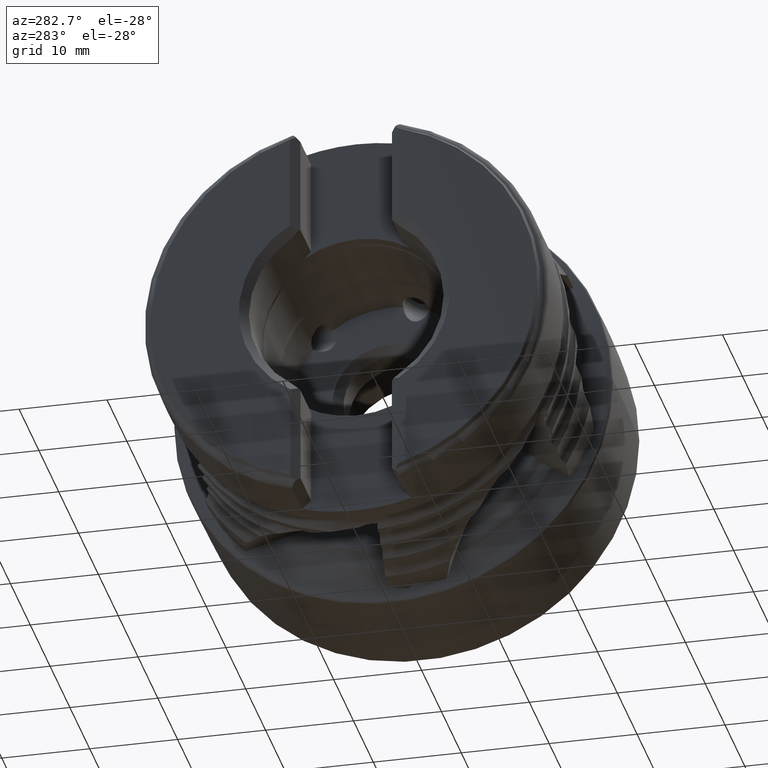
[diagram: clean part render]
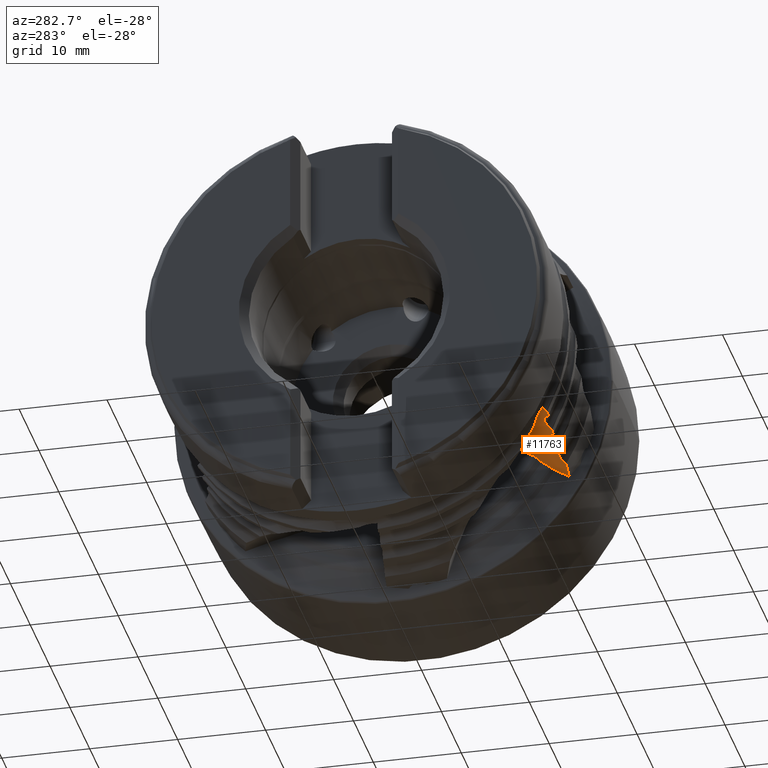
[diagram: same view with one face highlighted and labeled with its STEP entity id]
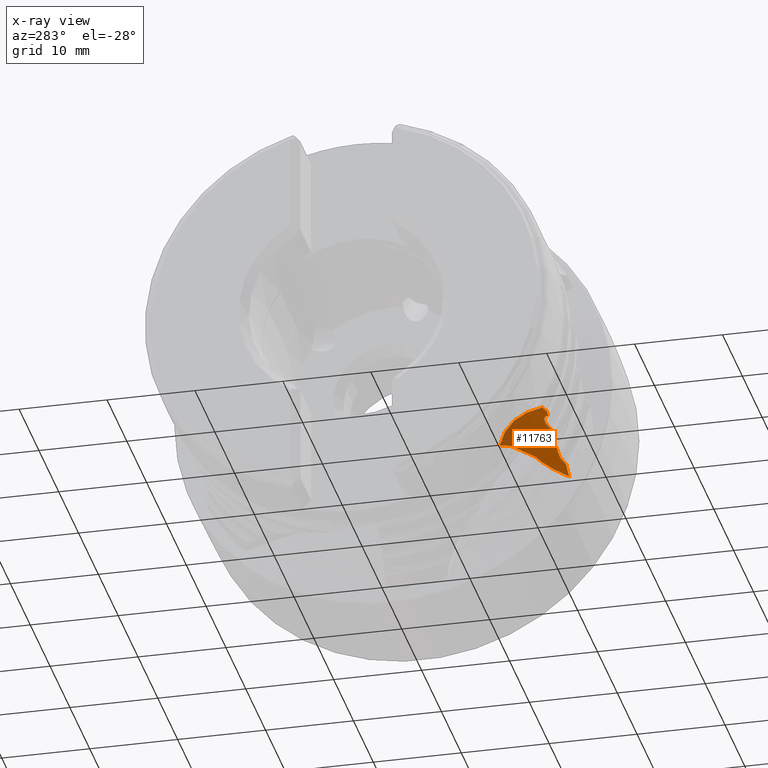
[diagram: x-ray of the same camera — body ghosted, the highlighted face saturated]
A machine part, auxiliary view. The second image highlights one B-rep face of the part: STEP entity #11763.
The next image is the same camera in x-ray: the body ghosted, the highlighted face saturated — about 25% of this face is hidden behind the body in this view.
In plain terms, the highlighted planar face has unit normal (0.1392, -0.4951, 0.8576).
Its self-contained STEP definition (entity closure, byte-faithful):
#49 = ORIENTED_EDGE ( 'NONE', *, *, #8799, .T. ) ;
#98 = VERTEX_POINT ( 'NONE', #15923 ) ;
#104 = B_SPLINE_CURVE_WITH_KNOTS ( 'NONE', 3,
 ( #13632, #6470, #2226, #12365, #10652, #12183, #855, #8070 ),
 .UNSPECIFIED., .F., .F.,
 ( 4, 2, 2, 4 ),
 ( 0.001473970468681208654, 0.001840347088348182709, 0.002206723708015156764, 0.002939476947349104873 ),
 .UNSPECIFIED. ) ;
#108 = B_SPLINE_CURVE_WITH_KNOTS ( 'NONE', 3,
 ( #9615, #18164, #9679, #18225 ),
 .UNSPECIFIED., .F., .F.,
 ( 4, 4 ),
 ( 1.991136668463215966E-07, 0.0001967258527080117557 ),
 .UNSPECIFIED. ) ;
#223 = CARTESIAN_POINT ( 'NONE',  ( -27.80607010177602234, -20.44402440242338415, -10.34363708619134847 ) ) ;
#495 = EDGE_CURVE ( 'NONE', #13180, #15628, #104, .T. ) ;
#526 = CARTESIAN_POINT ( 'NONE',  ( -25.42740005878287235, -19.71716645237323107, -10.31000215865463332 ) ) ;
#699 = EDGE_CURVE ( 'NONE', #3788, #98, #14283, .T. ) ;
#717 = B_SPLINE_CURVE_WITH_KNOTS ( 'NONE', 3,
 ( #9094, #2052, #18296, #13714, #8221, #929, #9611, #18354, #9675, #5314 ),
 .UNSPECIFIED., .F., .F.,
 ( 4, 2, 2, 2, 4 ),
 ( 3.542237846181087606E-07, 0.0003683011002327156512, 0.0007362479766808132514, 0.001104194853128910797, 0.001472141729577008343 ),
 .UNSPECIFIED. ) ;
#855 = CARTESIAN_POINT ( 'NONE',  ( -26.65554080571128992, -20.19235820607443799, -10.38504839963239235 ) ) ;
#902 = CARTESIAN_POINT ( 'NONE',  ( -23.45978721798716293, -20.23721145985156511, -10.92955956702979670 ) ) ;
#929 = CARTESIAN_POINT ( 'NONE',  ( -21.45426217832567772, -19.55433496018827810, -10.86076240879320309 ) ) ;
#938 = ORIENTED_EDGE ( 'NONE', *, *, #8509, .T. ) ;
#995 = CARTESIAN_POINT ( 'NONE',  ( -15.80531335188684672, -18.34075862404627344, -11.07682976013199116 ) ) ;
#1022 = EDGE_CURVE ( 'NONE', #16911, #5646, #10291, .T. ) ;
#1047 = CARTESIAN_POINT ( 'NONE',  ( -16.92008064741922979, -13.97159240121396806, -8.373383155219290330 ) ) ;
#1048 = CARTESIAN_POINT ( 'NONE',  ( -15.90896133935691026, -18.18367002668681565, -10.96931435360106377 ) ) ;
#1096 = B_SPLINE_CURVE_WITH_KNOTS ( 'NONE', 3,
 ( #223, #13139, #13079, #1735, #7812, #6118 ),
 .UNSPECIFIED., .F., .F.,
 ( 4, 2, 4 ),
 ( 3.555705899044723354E-07, 0.0002971868911706906924, 0.0005940182117514768980 ),
 .UNSPECIFIED. ) ;
#1185 = CARTESIAN_POINT ( 'NONE',  ( -24.20592235981755991, -20.28685633934350108, -10.83713731759242727 ) ) ;
#1259 = CARTESIAN_POINT ( 'NONE',  ( -16.65317086511449673, -16.91234783518121887, -10.11454390407220316 ) ) ;
#1298 = CARTESIAN_POINT ( 'NONE',  ( -16.65317086511449673, -16.91234783518121887, -10.11454390407220316 ) ) ;
#1302 = EDGE_CURVE ( 'NONE', #7879, #6756, #14281, .T. ) ;
#1369 = ORIENTED_EDGE ( 'NONE', *, *, #495, .T. ) ;
#1489 = CARTESIAN_POINT ( 'NONE',  ( -16.81930266459457357, -16.64648752649400265, -9.934089086661273882 ) ) ;
#1540 = ORIENTED_EDGE ( 'NONE', *, *, #1640, .T. ) ;
#1640 = EDGE_CURVE ( 'NONE', #11483, #2397, #13326, .T. ) ;
#1735 = CARTESIAN_POINT ( 'NONE',  ( -28.06379685068427676, -20.20341792516847335, -10.16289831067719795 ) ) ;
#1772 = CARTESIAN_POINT ( 'NONE',  ( -15.87441239859545306, -18.23603310707536096, -11.00515288331548369 ) ) ;
#1905 = ORIENTED_EDGE ( 'NONE', *, *, #14055, .T. ) ;
#2052 = CARTESIAN_POINT ( 'NONE',  ( -20.87533028832255866, -19.89661750561437970, -11.15232988783769663 ) ) ;
#2164 = CARTESIAN_POINT ( 'NONE',  ( -22.29389899649383722, -19.52214022688644945, -10.70591634384277313 ) ) ;
#2169 = EDGE_CURVE ( 'NONE', #18033, #11483, #717, .T. ) ;
#2226 = CARTESIAN_POINT ( 'NONE',  ( -25.79377743606461948, -19.75398533739151574, -10.27180288671002373 ) ) ;
#2296 = CARTESIAN_POINT ( 'NONE',  ( -20.64021278201282428, -20.04587222064566632, -11.27665761267700439 ) ) ;
#2313 = B_SPLINE_CURVE_WITH_KNOTS ( 'NONE', 3,
 ( #995, #8227, #12450, #2380 ),
 .UNSPECIFIED., .F., .F.,
 ( 4, 4 ),
 ( 3.231220371458403611E-07, 4.685435063957670921E-05 ),
 .UNSPECIFIED. ) ;
#2380 = CARTESIAN_POINT ( 'NONE',  ( -15.77651220158243817, -18.37019025707450837, -11.09849604628975683 ) ) ;
#2397 = VERTEX_POINT ( 'NONE', #14111 ) ;
#2415 = CARTESIAN_POINT ( 'NONE',  ( -16.45361573362453811, -17.11266878871806085, -10.26258358161158846 ) ) ;
#2463 = EDGE_CURVE ( 'NONE', #6352, #18033, #12101, .T. ) ;
#2495 = ORIENTED_EDGE ( 'NONE', *, *, #2169, .T. ) ;
#2599 = CARTESIAN_POINT ( 'NONE',  ( -16.92008064741922979, -13.97159240121396806, -8.373383155219290330 ) ) ;
#2605 = ORIENTED_EDGE ( 'NONE', *, *, #1302, .T. ) ;
#2656 = CARTESIAN_POINT ( 'NONE',  ( -26.79392989822396487, -20.37932422315864400, -10.47053514129509999 ) ) ;
#2698 = CARTESIAN_POINT ( 'NONE',  ( -16.10663191695058671, -17.69859771246182945, -10.65717923157998293 ) ) ;
#2716 = EDGE_CURVE ( 'NONE', #5646, #16212, #13942, .T. ) ;
#2719 = VERTEX_POINT ( 'NONE', #12312 ) ;
#2783 = CARTESIAN_POINT ( 'NONE',  ( -16.17100455448463237, -17.49506955121101726, -10.52922563535497424 ) ) ;
#2875 = CARTESIAN_POINT ( 'NONE',  ( -19.28000753342687190, -19.95148565411459884, -11.44290111674532362 ) ) ;
#3039 = DIRECTION ( 'NONE',  ( 0.0000000000000000000, -0.8660254037844397068, -0.4999999999999980571 ) ) ;
#3121 = VERTEX_POINT ( 'NONE', #17907 ) ;
#3159 = EDGE_CURVE ( 'NONE', #98, #4606, #12616, .T. ) ;
#3371 = CARTESIAN_POINT ( 'NONE',  ( -15.58189409781170198, -20.30191614983665360, -12.24536163798367561 ) ) ;
#3381 = ORIENTED_EDGE ( 'NONE', *, *, #1022, .T. ) ;
#3538 = ORIENTED_EDGE ( 'NONE', *, *, #2716, .T. ) ;
#3612 = B_SPLINE_CURVE_WITH_KNOTS ( 'NONE', 3,
 ( #5419, #11146, #18386, #2599 ),
 .UNSPECIFIED., .F., .F.,
 ( 4, 4 ),
 ( 6.188374858479060801E-05, 0.001882202591407743444 ),
 .UNSPECIFIED. ) ;
#3647 = EDGE_CURVE ( 'NONE', #10374, #14854, #1096, .T. ) ;
#3687 = B_SPLINE_CURVE_WITH_KNOTS ( 'NONE', 3,
 ( #9301, #14981, #13788, #7715 ),
 .UNSPECIFIED., .F., .F.,
 ( 4, 4 ),
 ( 1.361709741225221503E-06, 0.0001426686381011901697 ),
 .UNSPECIFIED. ) ;
#3788 = VERTEX_POINT ( 'NONE', #2415 ) ;
#3791 = CARTESIAN_POINT ( 'NONE',  ( -23.39427606288711559, -20.23283454710534102, -10.93766387438186172 ) ) ;
#3999 = CARTESIAN_POINT ( 'NONE',  ( -16.84005700675518113, -16.52692405207857718, -9.861691014382241605 ) ) ;
#4019 = CARTESIAN_POINT ( 'NONE',  ( -16.06437271833396352, -17.80870942135295820, -10.72761018802359168 ) ) ;
#4096 = CARTESIAN_POINT ( 'NONE',  ( -26.89433026929044601, -20.46228588147226546, -10.50213984605675321 ) ) ;
#4140 = CARTESIAN_POINT ( 'NONE',  ( -24.26919740393636360, -20.26200402498603736, -10.81252038995744513 ) ) ;
#4219 = CARTESIAN_POINT ( 'NONE',  ( -17.99999999999999645, -20.47536218936462404, -11.95308429713174370 ) ) ;
#4271 = CARTESIAN_POINT ( 'NONE',  ( -26.83084598091825512, -20.42919847858141225, -10.49333921903841649 ) ) ;
#4314 = CARTESIAN_POINT ( 'NONE',  ( -18.98464303024830002, -19.98602607886232718, -11.51077555314773626 ) ) ;
#4328 = ORIENTED_EDGE ( 'NONE', *, *, #17414, .T. ) ;
#4372 = B_SPLINE_CURVE_WITH_KNOTS ( 'NONE', 3,
 ( #16963, #1185, #4140, #15503 ),
 .UNSPECIFIED., .F., .F.,
 ( 4, 4 ),
 ( 1.991176426054523960E-07, 0.0001964750637344810362 ),
 .UNSPECIFIED. ) ;
#4400 = CARTESIAN_POINT ( 'NONE',  ( -16.25518053409054176, -17.33073644378969647, -10.42068757661488476 ) ) ;
#4431 = CARTESIAN_POINT ( 'NONE',  ( -27.64021278201282783, -20.51000061874422187, -10.40864422579190673 ) ) ;
#4465 = VERTEX_POINT ( 'NONE', #3371 ) ;
#4476 = PLANE ( 'NONE',  #7362 ) ;
#4592 =( BOUNDED_CURVE ( )  B_SPLINE_CURVE ( 3, ( #9895, #15896, #12972, #4219 ),
 .UNSPECIFIED., .F., .F. ) 
 B_SPLINE_CURVE_WITH_KNOTS ( ( 4, 4 ),
 ( 1.551653220718020032, 1.565988279242652270 ),
 .UNSPECIFIED. ) 
 CURVE ( )  GEOMETRIC_REPRESENTATION_ITEM ( )  RATIONAL_B_SPLINE_CURVE ( ( 1.000000000000000000, 0.9999828755814031966, 0.9999828755814031966, 1.000000000000000000 ) ) 
 REPRESENTATION_ITEM ( '' )  );
#4606 = VERTEX_POINT ( 'NONE', #13449 ) ;
#4679 = CARTESIAN_POINT ( 'NONE',  ( -24.30607010177602589, -20.21702910249051399, -10.78057030990325238 ) ) ;
#4737 = CARTESIAN_POINT ( 'NONE',  ( -16.76602882753732260, -16.76278910441870451, -10.00988124957398284 ) ) ;
#4793 = CARTESIAN_POINT ( 'NONE',  ( -24.37529603350135687, -20.13259180615907340, -10.72058625150676114 ) ) ;
#4799 = CARTESIAN_POINT ( 'NONE',  ( -28.22335738781866610, -20.11182675221392202, -10.08412422708381584 ) ) ;
#5042 = CARTESIAN_POINT ( 'NONE',  ( -22.17208597093858202, -19.50090574401725974, -10.71342474120173094 ) ) ;
#5087 = CARTESIAN_POINT ( 'NONE',  ( -23.45978721798716293, -20.23721145985156511, -10.92955956702979670 ) ) ;
#5249 = CARTESIAN_POINT ( 'NONE',  ( -15.95622291607161714, -18.08051176115880665, -10.90208617074358699 ) ) ;
#5314 = CARTESIAN_POINT ( 'NONE',  ( -22.04999999999999361, -19.49263077170403591, -10.72845960974905744 ) ) ;
#5395 = CARTESIAN_POINT ( 'NONE',  ( -16.38747281740767647, -17.18535956471487580, -10.31528546362766718 ) ) ;
#5419 = CARTESIAN_POINT ( 'NONE',  ( -16.08952334799043982, -12.51409244729241976, -7.666680143787513835 ) ) ;
#5438 = VERTEX_POINT ( 'NONE', #1259 ) ;
#5468 = CARTESIAN_POINT ( 'NONE',  ( -27.64021278201282783, -20.51000061874422187, -10.40864422579190673 ) ) ;
#5532 = CARTESIAN_POINT ( 'NONE',  ( -16.17100455448463237, -17.49506955121101726, -10.52922563535497424 ) ) ;
#5541 = CARTESIAN_POINT ( 'NONE',  ( -26.95978721798716293, -20.46648838616701482, -10.49394364092406740 ) ) ;
#5646 = VERTEX_POINT ( 'NONE', #15231 ) ;
#5716 = CARTESIAN_POINT ( 'NONE',  ( -16.80154480469085243, -16.68525475427873772, -9.959353147334498502 ) ) ;
#5763 = CARTESIAN_POINT ( 'NONE',  ( -16.10663191695058671, -17.69859771246182945, -10.65717923157998293 ) ) ;
#5859 = ORIENTED_EDGE ( 'NONE', *, *, #10487, .T. ) ;
#5885 = B_SPLINE_CURVE_WITH_KNOTS ( 'NONE', 3,
 ( #2656, #4271, #4096, #5541 ),
 .UNSPECIFIED., .F., .F.,
 ( 4, 4 ),
 ( 3.535517868655004952E-07, 0.0001959003341605023200 ),
 .UNSPECIFIED. ) ;
#6071 = ORIENTED_EDGE ( 'NONE', *, *, #12036, .T. ) ;
#6118 = CARTESIAN_POINT ( 'NONE',  ( -28.22335738781866610, -20.11182675221392202, -10.08412422708381584 ) ) ;
#6173 = CARTESIAN_POINT ( 'NONE',  ( -25.30676505422163558, -19.72213374925216556, -10.33244698832116804 ) ) ;
#6264 = ORIENTED_EDGE ( 'NONE', *, *, #17170, .F. ) ;
#6350 = EDGE_CURVE ( 'NONE', #8717, #10374, #108, .T. ) ;
#6352 = VERTEX_POINT ( 'NONE', #6622 ) ;
#6443 = ORIENTED_EDGE ( 'NONE', *, *, #8849, .T. ) ;
#6470 = CARTESIAN_POINT ( 'NONE',  ( -25.67192528672351060, -19.73308136411551317, -10.27950845298037486 ) ) ;
#6622 = CARTESIAN_POINT ( 'NONE',  ( -20.64021278201282428, -20.04587222064566632, -11.27665761267700439 ) ) ;
#6700 = CARTESIAN_POINT ( 'NONE',  ( -15.80531335188684672, -18.34075862404627344, -11.07682976013199116 ) ) ;
#6756 = VERTEX_POINT ( 'NONE', #16784 ) ;
#6767 = ORIENTED_EDGE ( 'NONE', *, *, #7316, .F. ) ;
#6795 = CARTESIAN_POINT ( 'NONE',  ( -14.40231342163426120, -32.01011025215984773, -19.19651604717783755 ) ) ;
#6819 = VERTEX_POINT ( 'NONE', #6700 ) ;
#6866 = CARTESIAN_POINT ( 'NONE',  ( -8.286499728246020879, -34.42106289550581266, -21.58097021446005925 ) ) ;
#6894 = CARTESIAN_POINT ( 'NONE',  ( -16.22712207887749614, -17.38551423803439633, -10.45686694930017957 ) ) ;
#6952 = EDGE_CURVE ( 'NONE', #15628, #11314, #5885, .T. ) ;
#6996 = CARTESIAN_POINT ( 'NONE',  ( -24.30607010177602589, -20.21702910249051399, -10.78057030990325238 ) ) ;
#7013 = ORIENTED_EDGE ( 'NONE', *, *, #10932, .T. ) ;
#7059 = CARTESIAN_POINT ( 'NONE',  ( -18.09991888714917607, -20.38510761019677986, -11.88476069700657689 ) ) ;
#7109 = CARTESIAN_POINT ( 'NONE',  ( -17.99999999999999645, -20.47536218936462404, -11.95308429713174370 ) ) ;
#7118 = CARTESIAN_POINT ( 'NONE',  ( -16.65317086511449673, -16.91234783518121887, -10.11454390407220316 ) ) ;
#7121 = CARTESIAN_POINT ( 'NONE',  ( -26.95978721798716293, -20.46648838616701482, -10.49394364092406740 ) ) ;
#7243 = CARTESIAN_POINT ( 'NONE',  ( -20.80607010177602589, -19.98087150996333605, -11.21221368151943665 ) ) ;
#7261 = VERTEX_POINT ( 'NONE', #6996 ) ;
#7267 = CARTESIAN_POINT ( 'NONE',  ( -27.18662009900539545, -20.48105164150778279, -10.46554071572305844 ) ) ;
#7316 = EDGE_CURVE ( 'NONE', #2719, #14854, #11347, .T. ) ;
#7362 = AXIS2_PLACEMENT_3D ( 'NONE', #14503, #14384, #3039 ) ;
#7369 = EDGE_CURVE ( 'NONE', #17396, #14213, #14669, .T. ) ;
#7380 = ORIENTED_EDGE ( 'NONE', *, *, #16885, .T. ) ;
#7391 = CARTESIAN_POINT ( 'NONE',  ( -17.99999999999999645, -20.47536218936462404, -11.95308429713174370 ) ) ;
#7715 = CARTESIAN_POINT ( 'NONE',  ( -16.81930266459457357, -16.64648752649400265, -9.934089086661273882 ) ) ;
#7748 = CARTESIAN_POINT ( 'NONE',  ( -22.04999999999999361, -19.49263077170403591, -10.72845960974905744 ) ) ;
#7810 = CARTESIAN_POINT ( 'NONE',  ( -22.52926181101010883, -19.58866885150012749, -10.70613137898608258 ) ) ;
#7812 = CARTESIAN_POINT ( 'NONE',  ( -28.14115308839453888, -20.15373802702061212, -10.12166203846726731 ) ) ;
#7876 = CARTESIAN_POINT ( 'NONE',  ( -22.96783857921536054, -19.80479891424579364, -10.75974076051844364 ) ) ;
#7879 = VERTEX_POINT ( 'NONE', #18394 ) ;
#7915 = CARTESIAN_POINT ( 'NONE',  ( -25.54999999999999361, -19.72514586317068819, -10.29471323916505732 ) ) ;
#7931 = B_SPLINE_CURVE_WITH_KNOTS ( 'NONE', 3,
 ( #4679, #4793, #13324, #14717, #13201, #17756, #11977, #6173, #526, #10290 ),
 .UNSPECIFIED., .F., .F.,
 ( 4, 2, 2, 2, 4 ),
 ( 3.548392554938725825E-07, 0.0003687587466119225774, 0.0007371626539683513420, 0.001105566561324779944, 0.001473970468681208654 ),
 .UNSPECIFIED. ) ;
#8070 = CARTESIAN_POINT ( 'NONE',  ( -26.79392989822396487, -20.37932422315864400, -10.47053514129509999 ) ) ;
#8217 = CARTESIAN_POINT ( 'NONE',  ( -16.92008064741922979, -13.97159240121396806, -8.373383155219290330 ) ) ;
#8221 = CARTESIAN_POINT ( 'NONE',  ( -21.23936599717225704, -19.63843237754818460, -10.94418998151552991 ) ) ;
#8227 = CARTESIAN_POINT ( 'NONE',  ( -15.79571301008562223, -18.35056920046950069, -11.08405186728318270 ) ) ;
#8282 = DIRECTION ( 'NONE',  ( 0.0000000000000000000, -0.8660254037844397068, -0.4999999999999982236 ) ) ;
#8357 = CARTESIAN_POINT ( 'NONE',  ( -16.14954705276420199, -17.56291228517007852, -10.57187683475459750 ) ) ;
#8459 = CARTESIAN_POINT ( 'NONE',  ( -19.57899999999999707, -19.97232522431376012, -11.40641158008249789 ) ) ;
#8509 = EDGE_CURVE ( 'NONE', #16212, #6819, #12313, .T. ) ;
#8517 = CARTESIAN_POINT ( 'NONE',  ( -18.20978850299964691, -20.30654512174240978, -11.82157269870062422 ) ) ;
#8554 = EDGE_CURVE ( 'NONE', #16234, #3121, #3687, .T. ) ;
#8717 = VERTEX_POINT ( 'NONE', #5468 ) ;
#8772 = CARTESIAN_POINT ( 'NONE',  ( -27.80607010177602234, -20.44402440242338415, -10.34363708619134847 ) ) ;
#8799 = EDGE_CURVE ( 'NONE', #3121, #18197, #13521, .T. ) ;
#8849 = EDGE_CURVE ( 'NONE', #4606, #16911, #16695, .T. ) ;
#8865 =( BOUNDED_CURVE ( )  B_SPLINE_CURVE ( 3, ( #17454, #7267, #13001, #4431 ),
 .UNSPECIFIED., .F., .F. ) 
 B_SPLINE_CURVE_WITH_KNOTS ( ( 4, 4 ),
 ( 1.620609203419215882, 1.624772531903110329 ),
 .UNSPECIFIED. ) 
 CURVE ( )  GEOMETRIC_REPRESENTATION_ITEM ( )  RATIONAL_B_SPLINE_CURVE ( ( 1.000000000000000000, 0.9999985555585162444, 0.9999985555585162444, 1.000000000000000000 ) ) 
 REPRESENTATION_ITEM ( '' )  );
#9087 = CARTESIAN_POINT ( 'NONE',  ( -22.04999999999999361, -19.49263077170403591, -10.72845960974905744 ) ) ;
#9094 = CARTESIAN_POINT ( 'NONE',  ( -20.80607010177602589, -19.98087150996333605, -11.21221368151943665 ) ) ;
#9129 = VECTOR ( 'NONE', #14081, 1000.000000000000000 ) ;
#9235 = CARTESIAN_POINT ( 'NONE',  ( -15.80531335188684672, -18.34075862404627344, -11.07682976013199116 ) ) ;
#9301 = CARTESIAN_POINT ( 'NONE',  ( -16.84005700675518113, -16.52692405207857718, -9.861691014382241605 ) ) ;
#9407 = CARTESIAN_POINT ( 'NONE',  ( -20.28648490854186193, -20.02149683487957077, -11.31998834818208266 ) ) ;
#9553 = CARTESIAN_POINT ( 'NONE',  ( -16.25518053409054176, -17.33073644378969647, -10.42068757661488476 ) ) ;
#9604 = CARTESIAN_POINT ( 'NONE',  ( -15.93259218173768943, -18.13209091605836676, -10.93570026618523450 ) ) ;
#9611 = CARTESIAN_POINT ( 'NONE',  ( -21.56975134424657270, -19.52384312272857869, -10.82441605870934964 ) ) ;
#9615 = CARTESIAN_POINT ( 'NONE',  ( -27.64021278201282783, -20.51000061874422187, -10.40864422579190673 ) ) ;
#9654 = CARTESIAN_POINT ( 'NONE',  ( -19.57899999999999707, -19.97232522431376012, -11.40641158008249789 ) ) ;
#9675 = CARTESIAN_POINT ( 'NONE',  ( -21.92750242351538148, -19.48432790081677979, -10.74354516745608557 ) ) ;
#9679 = CARTESIAN_POINT ( 'NONE',  ( -27.76922638726297876, -20.48910585731049849, -10.37564396926155297 ) ) ;
#9801 = CARTESIAN_POINT ( 'NONE',  ( -16.89340642122146363, -14.82336964836786919, -8.869485740333253432 ) ) ;
#9822 = CARTESIAN_POINT ( 'NONE',  ( -15.77651220158243817, -18.37019025707450837, -11.09849604628975683 ) ) ;
#9891 = ORIENTED_EDGE ( 'NONE', *, *, #17091, .T. ) ;
#9895 = CARTESIAN_POINT ( 'NONE',  ( -15.58189409781170198, -20.30191614983665360, -12.24536163798367561 ) ) ;
#10231 = VERTEX_POINT ( 'NONE', #9822 ) ;
#10290 = CARTESIAN_POINT ( 'NONE',  ( -25.54999999999999361, -19.72514586317068819, -10.29471323916505732 ) ) ;
#10291 = B_SPLINE_CURVE_WITH_KNOTS ( 'NONE', 3,
 ( #18239, #4019, #11062, #10873 ),
 .UNSPECIFIED., .F., .F.,
 ( 4, 4 ),
 ( 6.501380750674848905E-07, 0.0004127648446239235163 ),
 .UNSPECIFIED. ) ;
#10374 = VERTEX_POINT ( 'NONE', #8772 ) ;
#10487 = EDGE_CURVE ( 'NONE', #2397, #7879, #16341, .T. ) ;
#10650 = CARTESIAN_POINT ( 'NONE',  ( -22.64534124007339599, -19.63492948902230140, -10.71400230156984179 ) ) ;
#10652 = CARTESIAN_POINT ( 'NONE',  ( -26.14513370125381542, -19.86582359993678182, -10.27935373736227120 ) ) ;
#10699 = CARTESIAN_POINT ( 'NONE',  ( -23.29392989822396487, -20.14967720525062589, -10.90593739492023673 ) ) ;
#10873 = CARTESIAN_POINT ( 'NONE',  ( -15.97985353949619913, -18.02893256081585349, -10.86847206706383773 ) ) ;
#10932 = EDGE_CURVE ( 'NONE', #4465, #17396, #4592, .T. ) ;
#11062 = CARTESIAN_POINT ( 'NONE',  ( -16.02211325433657763, -17.91882103574589280, -10.79804113297530854 ) ) ;
#11146 = CARTESIAN_POINT ( 'NONE',  ( -16.36627129614890208, -12.99996584891189677, -7.902287912660955982 ) ) ;
#11258 = CARTESIAN_POINT ( 'NONE',  ( -16.72841016168543504, -16.81264241965478945, -10.04476892860190240 ) ) ;
#11259 = CARTESIAN_POINT ( 'NONE',  ( -16.78378685839676265, -16.72402194667123609, -9.984617201593660951 ) ) ;
#11293 = FACE_OUTER_BOUND ( 'NONE', #14093, .T. ) ;
#11314 = VERTEX_POINT ( 'NONE', #7121 ) ;
#11347 = CIRCLE ( 'NONE', #17830, 27.10000000000001208 ) ;
#11373 = ORIENTED_EDGE ( 'NONE', *, *, #3159, .T. ) ;
#11483 = VERTEX_POINT ( 'NONE', #9087 ) ;
#11669 = EDGE_CURVE ( 'NONE', #2719, #14584, #3612, .T. ) ;
#11763 = ADVANCED_FACE ( 'NONE', ( #11293 ), #4476, .F. ) ;
#11977 = CARTESIAN_POINT ( 'NONE',  ( -25.06939533480372972, -19.75776683588864913, -10.39154073036922732 ) ) ;
#12036 = EDGE_CURVE ( 'NONE', #6756, #7261, #4372, .T. ) ;
#12043 = CARTESIAN_POINT ( 'NONE',  ( -23.15554013620016960, -19.96249418110691920, -10.82032547282329737 ) ) ;
#12073 = EDGE_CURVE ( 'NONE', #18197, #5438, #17148, .T. ) ;
#12101 = B_SPLINE_CURVE_WITH_KNOTS ( 'NONE', 3,
 ( #15763, #17224, #13155, #7243 ),
 .UNSPECIFIED., .F., .F.,
 ( 4, 4 ),
 ( 1.991229227995059656E-07, 0.0001962502032609331226 ),
 .UNSPECIFIED. ) ;
#12183 = CARTESIAN_POINT ( 'NONE',  ( -26.46779235424106957, -20.03498951577669018, -10.32465984655227409 ) ) ;
#12270 = CARTESIAN_POINT ( 'NONE',  ( -16.19906341704087893, -17.44029193962635560, -10.49304630202379762 ) ) ;
#12312 = CARTESIAN_POINT ( 'NONE',  ( -16.08952334799043982, -12.51409244729241976, -7.666680143787513835 ) ) ;
#12313 = B_SPLINE_CURVE_WITH_KNOTS ( 'NONE', 3,
 ( #16085, #1772, #16375, #9235 ),
 .UNSPECIFIED., .F., .F.,
 ( 4, 4 ),
 ( 4.182416342727286905E-07, 0.0002171653185891117555 ),
 .UNSPECIFIED. ) ;
#12365 = CARTESIAN_POINT ( 'NONE',  ( -26.02905282516293184, -19.81986949522586983, -10.27166002640697329 ) ) ;
#12450 = CARTESIAN_POINT ( 'NONE',  ( -15.78611262658059466, -18.36037974475834034, -11.09127396264937992 ) ) ;
#12616 = B_SPLINE_CURVE_WITH_KNOTS ( 'NONE', 3,
 ( #4400, #6894, #12270, #2783 ),
 .UNSPECIFIED., .F., .F.,
 ( 4, 4 ),
 ( 5.088811320551343984E-07, 0.0002146851541700110083 ),
 .UNSPECIFIED. ) ;
#12664 = CARTESIAN_POINT ( 'NONE',  ( -16.84005700675518113, -16.52692405207857718, -9.861691014382241605 ) ) ;
#12667 = ORIENTED_EDGE ( 'NONE', *, *, #6350, .T. ) ;
#12691 = CARTESIAN_POINT ( 'NONE',  ( -20.80607010177602589, -19.98087150996333605, -11.21221368151943665 ) ) ;
#12704 = CARTESIAN_POINT ( 'NONE',  ( -16.52013645984338908, -17.04589697529172199, -10.21323770224797123 ) ) ;
#12758 = ORIENTED_EDGE ( 'NONE', *, *, #12073, .T. ) ;
#12765 = CARTESIAN_POINT ( 'NONE',  ( -16.45361573362453811, -17.11266878871806085, -10.26258358161158846 ) ) ;
#12820 = CARTESIAN_POINT ( 'NONE',  ( -16.86673182505941426, -15.67514686068273022, -9.365588365371644741 ) ) ;
#12883 = CARTESIAN_POINT ( 'NONE',  ( -18.44850433473401097, -20.17171762029347803, -11.70499058398217151 ) ) ;
#12972 = CARTESIAN_POINT ( 'NONE',  ( -17.19390241065202574, -20.41824564600106839, -12.05092363995760252 ) ) ;
#13001 = CARTESIAN_POINT ( 'NONE',  ( -27.41342894795939955, -20.49555573998384261, -10.43710753627560628 ) ) ;
#13056 = ORIENTED_EDGE ( 'NONE', *, *, #699, .T. ) ;
#13079 = CARTESIAN_POINT ( 'NONE',  ( -27.92454514438083990, -20.31429671220400479, -10.24951233403909079 ) ) ;
#13139 = CARTESIAN_POINT ( 'NONE',  ( -27.86173227338770886, -20.37591694606086890, -10.29528222724851361 ) ) ;
#13155 = CARTESIAN_POINT ( 'NONE',  ( -20.76917549784619155, -20.02575325624434299, -11.24411352123787111 ) ) ;
#13180 = VERTEX_POINT ( 'NONE', #7915 ) ;
#13201 = CARTESIAN_POINT ( 'NONE',  ( -24.73911413653104319, -19.87337305267209331, -10.51188489490301059 ) ) ;
#13324 = CARTESIAN_POINT ( 'NONE',  ( -24.45552297388019980, -20.05816192702977574, -10.66459470608648630 ) ) ;
#13326 = B_SPLINE_CURVE_WITH_KNOTS ( 'NONE', 3,
 ( #7748, #5042, #2164, #7810, #10650, #7876, #12043, #14957 ),
 .UNSPECIFIED., .F., .F.,
 ( 4, 2, 2, 4 ),
 ( 0.001472141729577008343, 0.001838852263402412706, 0.002205562797227817069, 0.002938983864878621025 ),
 .UNSPECIFIED. ) ;
#13449 = CARTESIAN_POINT ( 'NONE',  ( -16.17100455448463237, -17.49506955121101726, -10.52922563535497424 ) ) ;
#13495 = CARTESIAN_POINT ( 'NONE',  ( -23.68660996276965491, -20.25236587700737445, -10.90149959419629688 ) ) ;
#13521 = B_SPLINE_CURVE_WITH_KNOTS ( 'NONE', 3,
 ( #1489, #5716, #11259, #15814 ),
 .UNSPECIFIED., .F., .F.,
 ( 4, 4 ),
 ( 5.582115904373926907E-07, 0.0001492478571665985807 ),
 .UNSPECIFIED. ) ;
#13620 = ORIENTED_EDGE ( 'NONE', *, *, #6952, .T. ) ;
#13632 = CARTESIAN_POINT ( 'NONE',  ( -25.54999999999999361, -19.72514586317068819, -10.29471323916505732 ) ) ;
#13634 = ORIENTED_EDGE ( 'NONE', *, *, #2463, .T. ) ;
#13714 = CARTESIAN_POINT ( 'NONE',  ( -21.13726450428111647, -19.69322983703482066, -10.99239660293352294 ) ) ;
#13788 = CARTESIAN_POINT ( 'NONE',  ( -16.82622077966388829, -16.60663303522680323, -9.909956395854884192 ) ) ;
#13826 = EDGE_CURVE ( 'NONE', #14584, #16234, #18138, .T. ) ;
#13904 = CARTESIAN_POINT ( 'NONE',  ( -16.45361573362453811, -17.11266878871806085, -10.26258358161158846 ) ) ;
#13942 = B_SPLINE_CURVE_WITH_KNOTS ( 'NONE', 3,
 ( #16694, #5249, #9604, #1048 ),
 .UNSPECIFIED., .F., .F.,
 ( 4, 4 ),
 ( 5.581307574553010429E-07, 0.0001983927944006409793 ),
 .UNSPECIFIED. ) ;
#13981 = ORIENTED_EDGE ( 'NONE', *, *, #8554, .T. ) ;
#14055 = EDGE_CURVE ( 'NONE', #7261, #13180, #7931, .T. ) ;
#14081 = DIRECTION ( 'NONE',  ( -0.08630754905045649739, 0.8566650481704879416, 0.5086020076837670656 ) ) ;
#14093 = EDGE_LOOP ( 'NONE', ( #938, #15815, #6264, #7013, #15838, #9891, #13634, #2495, #1540, #5859, #2605, #6071, #1905, #1369, #13620, #4328, #12667, #14929, #6767, #17602, #16494, #13981, #49, #12758, #7380, #13056, #11373, #6443, #3381, #3538 ) ) ;
#14111 = CARTESIAN_POINT ( 'NONE',  ( -23.29392989822396487, -20.14967720525062589, -10.90593739492023673 ) ) ;
#14213 = VERTEX_POINT ( 'NONE', #9654 ) ;
#14281 =( BOUNDED_CURVE ( )  B_SPLINE_CURVE ( 3, ( #5087, #13495, #16275, #17749 ),
 .UNSPECIFIED., .F., .F. ) 
 B_SPLINE_CURVE_WITH_KNOTS ( ( 4, 4 ),
 ( 1.599205778288389945, 1.603365435263768513 ),
 .UNSPECIFIED. ) 
 CURVE ( )  GEOMETRIC_REPRESENTATION_ITEM ( )  RATIONAL_B_SPLINE_CURVE ( ( 1.000000000000000000, 0.9999985581050069294, 0.9999985581050069294, 1.000000000000000000 ) ) 
 REPRESENTATION_ITEM ( '' )  );
#14283 = B_SPLINE_CURVE_WITH_KNOTS ( 'NONE', 3,
 ( #13904, #5395, #16769, #9553 ),
 .UNSPECIFIED., .F., .F.,
 ( 4, 4 ),
 ( 3.372039563877682743E-07, 0.0003348919884664006120 ),
 .UNSPECIFIED. ) ;
#14384 = DIRECTION ( 'NONE',  ( 0.1391731009600657709, -0.4951340343707832381, 0.8575973040867557184 ) ) ;
#14503 = CARTESIAN_POINT ( 'NONE',  ( -8.286499728246020879, -31.11241624350588708, -19.67072217927455924 ) ) ;
#14572 = LINE ( 'NONE', #6795, #9129 ) ;
#14584 = VERTEX_POINT ( 'NONE', #1047 ) ;
#14669 = B_SPLINE_CURVE_WITH_KNOTS ( 'NONE', 3,
 ( #7109, #7059, #8517, #12883, #17208, #4314, #2875, #8459 ),
 .UNSPECIFIED., .F., .F.,
 ( 4, 2, 2, 4 ),
 ( 2.979226717687258743E-07, 0.0004467894393852234712, 0.0008932809560986782957, 0.001786263989525590980 ),
 .UNSPECIFIED. ) ;
#14717 = CARTESIAN_POINT ( 'NONE',  ( -24.63705966973198969, -19.92848082166455015, -10.56026304208228694 ) ) ;
#14854 = VERTEX_POINT ( 'NONE', #4799 ) ;
#14929 = ORIENTED_EDGE ( 'NONE', *, *, #3647, .T. ) ;
#14957 = CARTESIAN_POINT ( 'NONE',  ( -23.29392989822396487, -20.14967720525062589, -10.90593739492023673 ) ) ;
#14981 = CARTESIAN_POINT ( 'NONE',  ( -16.83313889372480077, -16.56677854375647740, -9.885823705094866298 ) ) ;
#15231 = CARTESIAN_POINT ( 'NONE',  ( -15.97985353949619913, -18.02893256081585349, -10.86847206706383773 ) ) ;
#15503 = CARTESIAN_POINT ( 'NONE',  ( -24.30607010177602589, -20.21702910249051399, -10.78057030990325238 ) ) ;
#15526 = CARTESIAN_POINT ( 'NONE',  ( -15.90896133935691026, -18.18367002668681565, -10.96931435360106377 ) ) ;
#15628 = VERTEX_POINT ( 'NONE', #16346 ) ;
#15686 = CARTESIAN_POINT ( 'NONE',  ( -16.58665486640060038, -16.97912334700862047, -10.16389115151698164 ) ) ;
#15763 = CARTESIAN_POINT ( 'NONE',  ( -20.64021278201282428, -20.04587222064566632, -11.27665761267700439 ) ) ;
#15814 = CARTESIAN_POINT ( 'NONE',  ( -16.76602882753732260, -16.76278910441870451, -10.00988124957398284 ) ) ;
#15815 = ORIENTED_EDGE ( 'NONE', *, *, #16767, .T. ) ;
#15838 = ORIENTED_EDGE ( 'NONE', *, *, #7369, .T. ) ;
#15896 = CARTESIAN_POINT ( 'NONE',  ( -16.38785330680030938, -20.36042930942058860, -12.14835108862999391 ) ) ;
#15923 = CARTESIAN_POINT ( 'NONE',  ( -16.25518053409054176, -17.33073644378969647, -10.42068757661488476 ) ) ;
#16085 = CARTESIAN_POINT ( 'NONE',  ( -15.90896133935691026, -18.18367002668681565, -10.96931435360106377 ) ) ;
#16212 = VERTEX_POINT ( 'NONE', #15526 ) ;
#16234 = VERTEX_POINT ( 'NONE', #12664 ) ;
#16275 = CARTESIAN_POINT ( 'NONE',  ( -23.91341881114609436, -20.26746190149778570, -10.87340816348629957 ) ) ;
#16341 = B_SPLINE_CURVE_WITH_KNOTS ( 'NONE', 3,
 ( #10699, #16595, #3791, #902 ),
 .UNSPECIFIED., .F., .F.,
 ( 4, 4 ),
 ( 3.538431435971835495E-07, 0.0001960539243423247021 ),
 .UNSPECIFIED. ) ;
#16346 = CARTESIAN_POINT ( 'NONE',  ( -26.79392989822396487, -20.37932422315864400, -10.47053514129509999 ) ) ;
#16375 = CARTESIAN_POINT ( 'NONE',  ( -15.83986306600486316, -18.28839597096720482, -11.04099135162251599 ) ) ;
#16494 = ORIENTED_EDGE ( 'NONE', *, *, #13826, .T. ) ;
#16595 = CARTESIAN_POINT ( 'NONE',  ( -23.33084445169997423, -20.19960703859600315, -10.92877380875761339 ) ) ;
#16614 = CARTESIAN_POINT ( 'NONE',  ( -19.57899999999999707, -19.97232522431376012, -11.40641158008249789 ) ) ;
#16694 = CARTESIAN_POINT ( 'NONE',  ( -15.97985353949619913, -18.02893256081585349, -10.86847206706383773 ) ) ;
#16695 = B_SPLINE_CURVE_WITH_KNOTS ( 'NONE', 3,
 ( #5532, #8357, #17101, #2698 ),
 .UNSPECIFIED., .F., .F.,
 ( 4, 4 ),
 ( 7.732395104645550380E-07, 0.0002496500597893704185 ),
 .UNSPECIFIED. ) ;
#16767 = EDGE_CURVE ( 'NONE', #6819, #10231, #2313, .T. ) ;
#16769 = CARTESIAN_POINT ( 'NONE',  ( -16.32132772250368546, -17.25804876257479137, -10.36798678806894891 ) ) ;
#16784 = CARTESIAN_POINT ( 'NONE',  ( -24.14021278201282783, -20.28249946802214154, -10.84528539641448752 ) ) ;
#16885 = EDGE_CURVE ( 'NONE', #5438, #3788, #16894, .T. ) ;
#16894 = B_SPLINE_CURVE_WITH_KNOTS ( 'NONE', 3,
 ( #1298, #15686, #12704, #12765 ),
 .UNSPECIFIED., .F., .F.,
 ( 4, 4 ),
 ( 3.198882530674929650E-07, 0.0003194851762401071924 ),
 .UNSPECIFIED. ) ;
#16911 = VERTEX_POINT ( 'NONE', #5763 ) ;
#16955 = DIRECTION ( 'NONE',  ( 0.1391731009600657709, -0.4951340343707832381, 0.8575973040867558295 ) ) ;
#16963 = CARTESIAN_POINT ( 'NONE',  ( -24.14021278201282783, -20.28249946802214154, -10.84528539641448752 ) ) ;
#17011 =( BOUNDED_CURVE ( )  B_SPLINE_CURVE ( 3, ( #16614, #18088, #9407, #2296 ),
 .UNSPECIFIED., .F., .F. ) 
 B_SPLINE_CURVE_WITH_KNOTS ( ( 4, 4 ),
 ( 1.575488536090387415, 1.581973261589885604 ),
 .UNSPECIFIED. ) 
 CURVE ( )  GEOMETRIC_REPRESENTATION_ITEM ( )  RATIONAL_B_SPLINE_CURVE ( ( 1.000000000000000000, 0.9999964956976695740, 0.9999964956976695740, 1.000000000000000000 ) ) 
 REPRESENTATION_ITEM ( '' )  );
#17091 = EDGE_CURVE ( 'Kante28', #14213, #6352, #17011, .T. ) ;
#17101 = CARTESIAN_POINT ( 'NONE',  ( -16.12808950640651062, -17.63075500542959162, -10.61452803348863050 ) ) ;
#17148 = B_SPLINE_CURVE_WITH_KNOTS ( 'NONE', 3,
 ( #18545, #11258, #18423, #7118 ),
 .UNSPECIFIED., .F., .F.,
 ( 4, 4 ),
 ( 3.803318015210983088E-07, 0.0002149939494406185930 ),
 .UNSPECIFIED. ) ;
#17170 = EDGE_CURVE ( 'NONE', #4465, #10231, #14572, .T. ) ;
#17208 = CARTESIAN_POINT ( 'NONE',  ( -18.57902280752181312, -20.11507817249454177, -11.65110890937397770 ) ) ;
#17224 = CARTESIAN_POINT ( 'NONE',  ( -20.70584544454539255, -20.05039496705066782, -11.26861778388775193 ) ) ;
#17396 = VERTEX_POINT ( 'NONE', #7391 ) ;
#17414 = EDGE_CURVE ( 'NONE', #11314, #8717, #8865, .T. ) ;
#17454 = CARTESIAN_POINT ( 'NONE',  ( -26.95978721798716293, -20.46648838616701482, -10.49394364092406740 ) ) ;
#17602 = ORIENTED_EDGE ( 'NONE', *, *, #11669, .T. ) ;
#17749 = CARTESIAN_POINT ( 'NONE',  ( -24.14021278201282783, -20.28249946802214154, -10.84528539641448752 ) ) ;
#17756 = CARTESIAN_POINT ( 'NONE',  ( -24.95395503759761979, -19.78861450345384654, -10.42808458851928499 ) ) ;
#17830 = AXIS2_PLACEMENT_3D ( 'NONE', #6866, #16955, #8282 ) ;
#17907 = CARTESIAN_POINT ( 'NONE',  ( -16.81930266459457357, -16.64648752649400265, -9.934089086661273882 ) ) ;
#18033 = VERTEX_POINT ( 'NONE', #12691 ) ;
#18088 = CARTESIAN_POINT ( 'NONE',  ( -19.93274607492978845, -19.99698108352500014, -11.36323982221682094 ) ) ;
#18138 = B_SPLINE_CURVE_WITH_KNOTS ( 'NONE', 3,
 ( #8217, #9801, #12820, #3999 ),
 .UNSPECIFIED., .F., .F.,
 ( 4, 4 ),
 ( 7.393504340693352892E-06, 0.002965633506879666783 ),
 .UNSPECIFIED. ) ;
#18164 = CARTESIAN_POINT ( 'NONE',  ( -27.70600752475583661, -20.51419138077962501, -10.40038642294318727 ) ) ;
#18197 = VERTEX_POINT ( 'NONE', #4737 ) ;
#18225 = CARTESIAN_POINT ( 'NONE',  ( -27.80607010177602234, -20.44402440242338415, -10.34363708619134847 ) ) ;
#18239 = CARTESIAN_POINT ( 'NONE',  ( -16.10663191695058671, -17.69859771246182945, -10.65717923157998293 ) ) ;
#18296 = CARTESIAN_POINT ( 'NONE',  ( -20.95560436845216401, -19.82240536755222138, -11.09645640532089672 ) ) ;
#18354 = CARTESIAN_POINT ( 'NONE',  ( -21.80695869812182508, -19.48894630887923896, -10.76577375305189754 ) ) ;
#18386 = CARTESIAN_POINT ( 'NONE',  ( -16.64313403554051263, -13.48579523256812429, -8.137851639134275672 ) ) ;
#18394 = CARTESIAN_POINT ( 'NONE',  ( -23.45978721798716293, -20.23721145985156511, -10.92955956702979670 ) ) ;
#18423 = CARTESIAN_POINT ( 'NONE',  ( -16.69079083485109294, -16.86249532619100577, -10.07965647893278316 ) ) ;
#18545 = CARTESIAN_POINT ( 'NONE',  ( -16.76602882753732260, -16.76278910441870451, -10.00988124957398284 ) ) ;